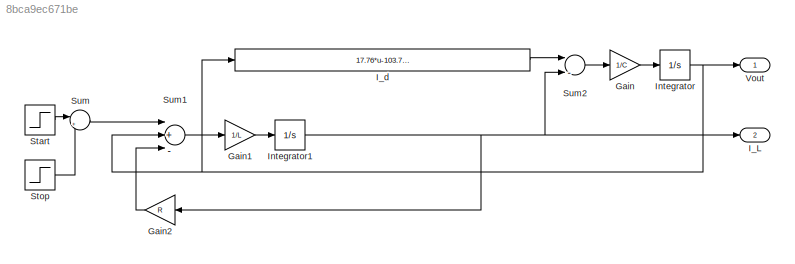
MODEL slx_8bca9ec671be
KIND model
BLOCK [Gain] Gain
  Gain = 1/C
  OutDataTypeStr = Inherit: Inherit via internal rule
  ParamDataTypeStr = Inherit: Inherit via internal rule
  SaturateOnIntegerOverflow = off
BLOCK [Gain] Gain1
  Gain = 1/L
  OutDataTypeStr = Inherit: Inherit via internal rule
  ParamDataTypeStr = Inherit: Inherit via internal rule
  SaturateOnIntegerOverflow = off
BLOCK [Gain] Gain2
  Gain = R
  OutDataTypeStr = Inherit: Inherit via internal rule
  ParamDataTypeStr = Inherit: Inherit via internal rule
  SaturateOnIntegerOverflow = off
BLOCK [Outport] I_L
  IconDisplay = Port number
  Port = 2
BLOCK [Fcn] I_d
  Expr = 17.76*u-103.79*(u^2)+229.62*(u^3)-226.31*(u^4)+83.72*(u^5)
BLOCK [Integrator] Integrator
  Ports = [1, 1]
BLOCK [Integrator] Integrator1
  Ports = [1, 1]
BLOCK [Step] Start
  After = Vmax
  SampleTime = 0
  Time = 0
BLOCK [Step] Stop
  After = Vmax
  SampleTime = 0
  Time = tpulse
BLOCK [Sum] Sum
  IconShape = round
  InputSameDT = off
  Inputs = |+-
  OutDataTypeStr = Inherit: Inherit via internal rule
  Ports = [2, 1]
  SaturateOnIntegerOverflow = off
BLOCK [Sum] Sum1
  InputSameDT = off
  Inputs = |+|-|-
  OutDataTypeStr = Inherit: Inherit via internal rule
  Ports = [3, 1]
  SaturateOnIntegerOverflow = off
BLOCK [Sum] Sum2
  InputSameDT = off
  Inputs = |-|+
  OutDataTypeStr = Inherit: Inherit via internal rule
  Ports = [2, 1]
  SaturateOnIntegerOverflow = off
BLOCK [Outport] Vout
  IconDisplay = Port number
LINE Gain1:1 -> Integrator1:1
LINE Gain2:1 -> Sum1:3
LINE Gain:1 -> Integrator:1
LINE I_d:1 -> Sum2:1
NET Integrator1:1 -> Gain2:1, I_L:1, Sum2:2
NET Integrator:1 -> I_d:1, Sum1:2, Vout:1
LINE Start:1 -> Sum:1
LINE Stop:1 -> Sum:2
LINE Sum1:1 -> Gain1:1
LINE Sum2:1 -> Gain:1
LINE Sum:1 -> Sum1:1
note: NET lines group one-source signal fan-out (src -> all destinations, sorted); 1:1 wires keep LINE
